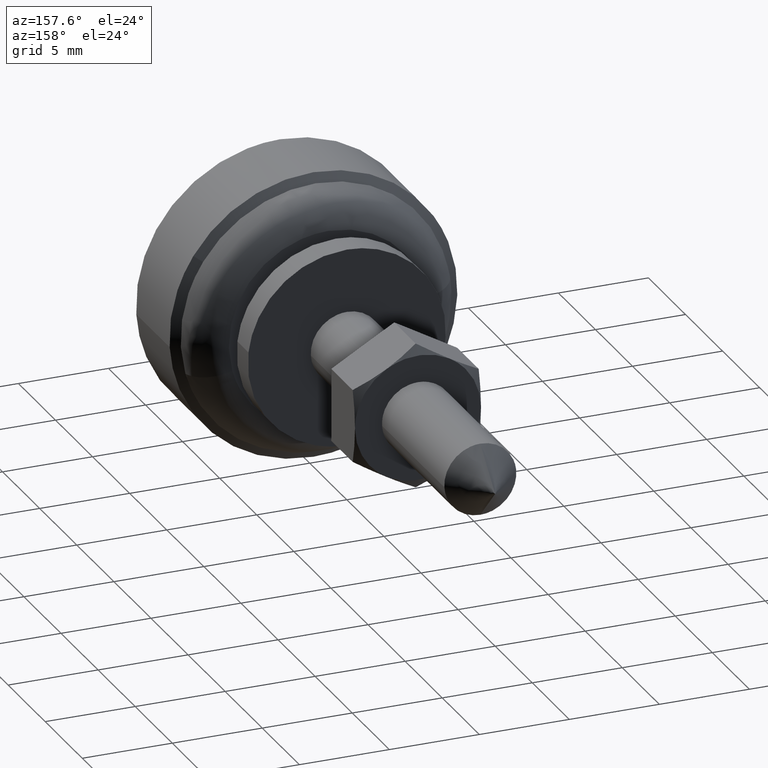
[diagram: clean part render]
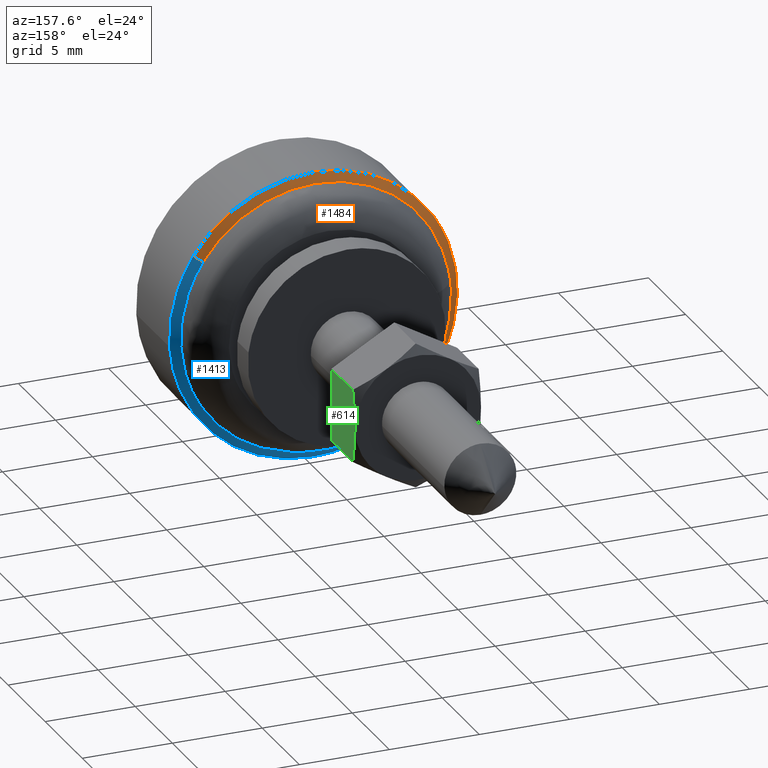
[diagram: same view with three faces highlighted in distinct colors, each labeled with its STEP entity id]
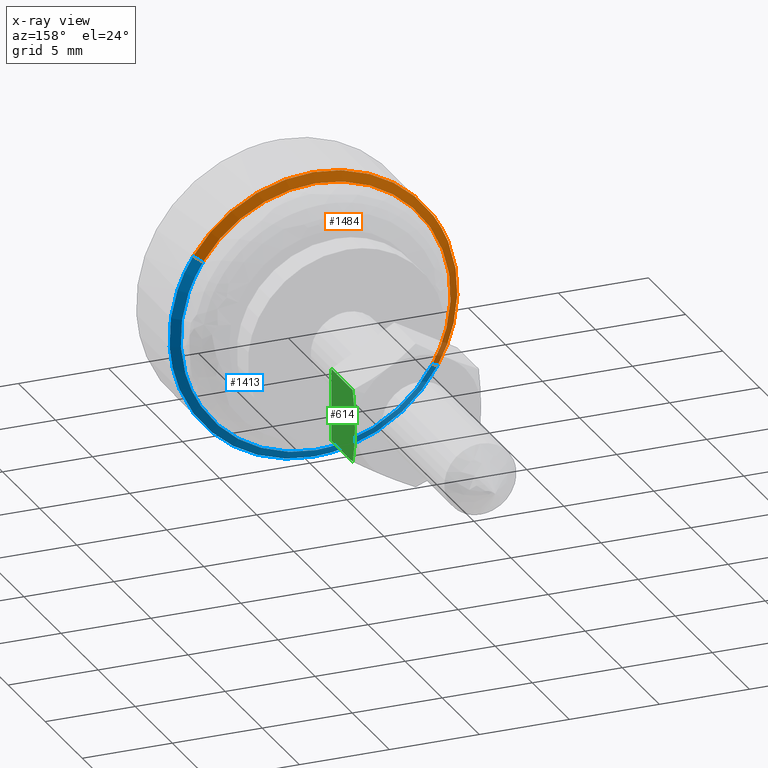
[diagram: x-ray of the same camera — body ghosted, the three highlighted faces saturated]
A machine part, auxiliary view with three faces highlighted in distinct colors.
The next image is the same camera in x-ray (body ghosted, the three faces saturated) — at least one of them is partly hidden behind the body in this view.
Their STEP definitions:

[orange] entity #1484 — the highlighted face is a freeform B-spline surface patch.
#1191=CARTESIAN_POINT('',(-4.500000000000000,7.489148755111877,2.812943462603911));
#1192=VERTEX_POINT('',#1191);
#1193=CARTESIAN_POINT('',(-4.500000000000862,6.912699561845349,-4.026733759225474));
#1194=VERTEX_POINT('',#1193);
#1195=CARTESIAN_POINT('',(-4.500000000000001,7.489148755111877,2.812943462603911));
#1196=CARTESIAN_POINT('',(-4.499999999999999,8.0,1.452858721607607));
#1197=CARTESIAN_POINT('',(-4.500000000000000,8.0,0.0));
#1198=CARTESIAN_POINT('',(-4.499999999999999,8.0,-2.160163553244566));
#1199=CARTESIAN_POINT('',(-4.500000000000862,6.912699561845349,-4.026733759225475));
#1207=(BOUNDED_CURVE()B_SPLINE_CURVE(2,(#1195,#1196,#1197,#1198,#1199),.UNSPECIFIED.,.F.,.U.)B_SPLINE_CURVE_WITH_KNOTS((3,2,3),(0.190284184925302,0.250000000000000,0.335863179245147),.UNSPECIFIED.)CURVE()GEOMETRIC_REPRESENTATION_ITEM()RATIONAL_B_SPLINE_CURVE((0.893499571800742,0.930038570834811,1.0,0.899405028213330,0.867909289176095))REPRESENTATION_ITEM(''));
#1208=EDGE_CURVE('',#1192,#1194,#1207,.T.);
#1275=CARTESIAN_POINT('',(-4.500000000000000,0.0,8.0));
#1276=VERTEX_POINT('',#1275);
#1277=CARTESIAN_POINT('',(-4.500000000000000,0.0,8.0));
#1278=CARTESIAN_POINT('',(-4.500000000000001,5.540877291164208,8.000000000000002));
#1279=CARTESIAN_POINT('',(-4.500000000000000,7.489148755111877,2.812943462603912));
#1287=(BOUNDED_CURVE()B_SPLINE_CURVE(2,(#1277,#1278,#1279),.UNSPECIFIED.,.F.,.U.)B_SPLINE_CURVE_WITH_KNOTS((3,3),(0.0,0.190284184925302),.UNSPECIFIED.)CURVE()GEOMETRIC_REPRESENTATION_ITEM()RATIONAL_B_SPLINE_CURVE((1.0,0.777068210351737,0.893499571800742))REPRESENTATION_ITEM(''));
#1288=EDGE_CURVE('',#1276,#1192,#1287,.T.);
#1294=CARTESIAN_POINT('',(-4.500000000000428,-6.671086576530033,4.415495882508806));
#1295=VERTEX_POINT('',#1294);
#1311=CARTESIAN_POINT('',(-4.500000000000428,-6.671086576530033,4.415495882508806));
#1312=CARTESIAN_POINT('',(-4.500000000000001,-4.298555057096790,8.0));
#1313=CARTESIAN_POINT('',(-4.500000000000000,0.0,8.0));
#1321=(BOUNDED_CURVE()B_SPLINE_CURVE(2,(#1311,#1312,#1313),.UNSPECIFIED.,.F.,.U.)B_SPLINE_CURVE_WITH_KNOTS((3,3),(0.844612684636419,1.0),.UNSPECIFIED.)CURVE()GEOMETRIC_REPRESENTATION_ITEM()RATIONAL_B_SPLINE_CURVE((0.862207930029771,0.817952436161519,1.0))REPRESENTATION_ITEM(''));
#1322=EDGE_CURVE('',#1295,#1276,#1321,.T.);
#1349=CARTESIAN_POINT('',(-4.199981513082358,6.480629215372399,-3.775047390546246));
#1350=VERTEX_POINT('',#1349);
#1381=CARTESIAN_POINT('',(-4.199982109619155,-6.254118205825438,4.139510538468565));
#1382=VERTEX_POINT('',#1381);
#1398=CARTESIAN_POINT('',(-4.199982109619155,-6.254118205825438,4.139510538468565));
#1399=CARTESIAN_POINT('',(-4.500000000000428,-6.671086576530033,4.415495882508806));
#1400=QUASI_UNIFORM_CURVE('',1,(#1398,#1399),.UNSPECIFIED.,.F.,.U.);
#1401=EDGE_CURVE('',#1382,#1295,#1400,.T.);
#1406=CARTESIAN_POINT('',(-4.199981513082358,6.480629215372399,-3.775047390546246));
#1407=CARTESIAN_POINT('',(-4.500000000000862,6.912699561845349,-4.026733759225474));
#1408=QUASI_UNIFORM_CURVE('',1,(#1406,#1407),.UNSPECIFIED.,.F.,.U.);
#1409=EDGE_CURVE('',#1350,#1194,#1408,.T.);
#1414=CARTESIAN_POINT('',(-4.192481050895472,-6.243693757078574,4.132610746337989));
#1415=CARTESIAN_POINT('',(-4.192481050895473,-2.111083010740585,10.376304503416561));
#1416=CARTESIAN_POINT('',(-4.192481050895472,4.132610746337989,6.243693757078574));
#1417=CARTESIAN_POINT('',(-4.192481050895473,10.028864423522142,2.341048583003379));
#1418=CARTESIAN_POINT('',(-4.192481050895473,6.469827456702088,-3.768755231297730));
#1419=CARTESIAN_POINT('',(-4.507687973727614,-6.681771397023817,4.422568010900430));
#1420=CARTESIAN_POINT('',(-4.507687973727614,-2.259203386123387,11.104339407924247));
#1421=CARTESIAN_POINT('',(-4.507687973727614,4.422568010900430,6.681771397023817));
#1422=CARTESIAN_POINT('',(-4.507687973727614,10.732521814310489,2.505304082734861));
#1423=CARTESIAN_POINT('',(-4.507687973727614,6.923771364484513,-4.033183222402581));
#1431=(BOUNDED_SURFACE()B_SPLINE_SURFACE(2,1,((#1414,#1419),(#1415,#1420),(#1416,#1421),(#1417,#1422),(#1418,#1423)),.UNSPECIFIED.,.F.,.F.,.U.)B_SPLINE_SURFACE_WITH_KNOTS((3,2,3),(2,2),(0.0,13.276063749173350,26.021084948379769),(0.0,1.0),.UNSPECIFIED.)GEOMETRIC_REPRESENTATION_ITEM()RATIONAL_B_SPLINE_SURFACE(((1.0,1.0),(0.707106781186548,0.707106781186548),(1.0,1.0),(0.718822509939086,0.718822509939086),(0.977505800795127,0.977505800795127)))REPRESENTATION_ITEM('')SURFACE());
#1432=CARTESIAN_POINT('',(-4.199981513068753,7.414857623658715,1.126687289724964));
#1433=VERTEX_POINT('',#1432);
#1434=CARTESIAN_POINT('',(-4.199981513068753,7.414857623658715,1.126687289724964));
#1435=CARTESIAN_POINT('',(-4.199981513081490,7.499969188469151,0.566558369360793));
#1436=CARTESIAN_POINT('',(-4.199981513081490,7.499969188469150,0.0));
#1437=CARTESIAN_POINT('',(-4.199981513081490,7.499969188469149,-2.025145011425083));
#1438=CARTESIAN_POINT('',(-4.199981513082358,6.480629215372399,-3.775047390546246));
#1446=(BOUNDED_CURVE()B_SPLINE_CURVE(2,(#1434,#1435,#1436,#1437,#1438),.UNSPECIFIED.,.F.,.U.)B_SPLINE_CURVE_WITH_KNOTS((3,2,3),(0.224102415376537,0.250000000000000,0.335863179245206),.UNSPECIFIED.)CURVE()GEOMETRIC_REPRESENTATION_ITEM()RATIONAL_B_SPLINE_CURVE((0.945604234434568,0.969659092320560,1.0,0.899405028213261,0.867909289176052))REPRESENTATION_ITEM(''));
#1447=EDGE_CURVE('',#1433,#1350,#1446,.T.);
#1448=ORIENTED_EDGE('',*,*,#1447,.T.);
#1449=ORIENTED_EDGE('',*,*,#1409,.T.);
#1450=ORIENTED_EDGE('',*,*,#1208,.F.);
#1451=ORIENTED_EDGE('',*,*,#1288,.F.);
#1452=ORIENTED_EDGE('',*,*,#1322,.F.);
#1453=ORIENTED_EDGE('',*,*,#1401,.F.);
#1454=CARTESIAN_POINT('',(-4.199981513081490,0.0,7.499969188469150));
#1455=VERTEX_POINT('',#1454);
#1456=CARTESIAN_POINT('',(-4.199982109619155,-6.254118205825438,4.139510538468565));
#1457=CARTESIAN_POINT('',(-4.199981857847730,-4.029878793828583,7.499969174692290));
#1458=CARTESIAN_POINT('',(-4.199981513081490,0.0,7.499969188469150));
#1466=(BOUNDED_CURVE()B_SPLINE_CURVE(2,(#1456,#1457,#1458),.UNSPECIFIED.,.F.,.U.)B_SPLINE_CURVE_WITH_KNOTS((3,3),(0.844612686750472,1.0),.UNSPECIFIED.)CURVE()GEOMETRIC_REPRESENTATION_ITEM()RATIONAL_B_SPLINE_CURVE((0.862207928825574,0.817952438638286,1.0))REPRESENTATION_ITEM(''));
#1467=EDGE_CURVE('',#1382,#1455,#1466,.T.);
#1468=ORIENTED_EDGE('',*,*,#1467,.T.);
#1469=CARTESIAN_POINT('',(-4.199981513081490,0.0,7.499969188469150));
#1470=CARTESIAN_POINT('',(-4.199981513081490,6.446437719516140,7.499969188469150));
#1471=CARTESIAN_POINT('',(-4.199981513068753,7.414857623658715,1.126687289724965));
#1479=(BOUNDED_CURVE()B_SPLINE_CURVE(2,(#1469,#1470,#1471),.UNSPECIFIED.,.F.,.U.)B_SPLINE_CURVE_WITH_KNOTS((3,3),(0.0,0.224102415376537),.UNSPECIFIED.)CURVE()GEOMETRIC_REPRESENTATION_ITEM()RATIONAL_B_SPLINE_CURVE((1.0,0.737447688865987,0.945604234434569))REPRESENTATION_ITEM(''));
#1480=EDGE_CURVE('',#1455,#1433,#1479,.T.);
#1481=ORIENTED_EDGE('',*,*,#1480,.T.);
#1482=EDGE_LOOP('',(#1448,#1449,#1450,#1451,#1452,#1453,#1468,#1481));
#1483=FACE_OUTER_BOUND('',#1482,.T.);
#1484=ADVANCED_FACE('',(#1483),#1431,.T.);

[blue] entity #1413 — the highlighted face is a freeform B-spline surface patch.
#1193=CARTESIAN_POINT('',(-4.500000000000862,6.912699561845349,-4.026733759225474));
#1194=VERTEX_POINT('',#1193);
#1210=CARTESIAN_POINT('',(-4.500000000000000,0.0,-8.0));
#1211=VERTEX_POINT('',#1210);
#1212=CARTESIAN_POINT('',(-4.500000000000862,6.912699561845349,-4.026733759225474));
#1213=CARTESIAN_POINT('',(-4.500000000000000,4.598222393686203,-8.0));
#1214=CARTESIAN_POINT('',(-4.500000000000000,0.0,-8.0));
#1222=(BOUNDED_CURVE()B_SPLINE_CURVE(2,(#1212,#1213,#1214),.UNSPECIFIED.,.F.,.U.)B_SPLINE_CURVE_WITH_KNOTS((3,3),(0.335863179245147,0.500000000000000),.UNSPECIFIED.)CURVE()GEOMETRIC_REPRESENTATION_ITEM()RATIONAL_B_SPLINE_CURVE((0.867909289176095,0.807701752973217,1.0))REPRESENTATION_ITEM(''));
#1223=EDGE_CURVE('',#1194,#1211,#1222,.T.);
#1225=CARTESIAN_POINT('',(-4.499999999999990,-7.985078535560109,-0.488385893460607));
#1226=VERTEX_POINT('',#1225);
#1227=CARTESIAN_POINT('',(-4.500000000000000,0.0,-8.0));
#1228=CARTESIAN_POINT('',(-4.499999999999999,-7.525650822931699,-8.0));
#1229=CARTESIAN_POINT('',(-4.499999999999990,-7.985078535560109,-0.488385893460607));
#1237=(BOUNDED_CURVE()B_SPLINE_CURVE(2,(#1227,#1228,#1229),.UNSPECIFIED.,.F.,.U.)B_SPLINE_CURVE_WITH_KNOTS((3,3),(0.500000000000000,0.739333014595810),.UNSPECIFIED.)CURVE()GEOMETRIC_REPRESENTATION_ITEM()RATIONAL_B_SPLINE_CURVE((1.0,0.719603931946825,0.976072153877475))REPRESENTATION_ITEM(''));
#1238=EDGE_CURVE('',#1211,#1226,#1237,.T.);
#1294=CARTESIAN_POINT('',(-4.500000000000428,-6.671086576530033,4.415495882508806));
#1295=VERTEX_POINT('',#1294);
#1296=CARTESIAN_POINT('',(-4.499999999999990,-7.985078535560109,-0.488385893460607));
#1297=CARTESIAN_POINT('',(-4.500000000000000,-8.000000000000002,-0.244420891582942));
#1298=CARTESIAN_POINT('',(-4.500000000000000,-8.0,0.0));
#1299=CARTESIAN_POINT('',(-4.500000000000000,-8.0,2.407726713077449));
#1300=CARTESIAN_POINT('',(-4.500000000000428,-6.671086576530033,4.415495882508806));
#1308=(BOUNDED_CURVE()B_SPLINE_CURVE(2,(#1296,#1297,#1298,#1299,#1300),.UNSPECIFIED.,.F.,.U.)B_SPLINE_CURVE_WITH_KNOTS((3,2,3),(0.739333014595810,0.750000000000000,0.844612684636419),.UNSPECIFIED.)CURVE()GEOMETRIC_REPRESENTATION_ITEM()RATIONAL_B_SPLINE_CURVE((0.976072153877475,0.987502849239722,1.0,0.889154345025028,0.862207930029771))REPRESENTATION_ITEM(''));
#1309=EDGE_CURVE('',#1226,#1295,#1308,.T.);
#1327=CARTESIAN_POINT('',(-4.192481050895473,6.469827456702088,-3.768755231297730));
#1328=CARTESIAN_POINT('',(-4.192481050895472,6.361967301149106,-3.953918913482667));
#1329=CARTESIAN_POINT('',(-4.192481050895472,6.243693757078574,-4.132610746337989));
#1330=CARTESIAN_POINT('',(-4.192481050895473,2.111083010740585,-10.376304503416561));
#1331=CARTESIAN_POINT('',(-4.192481050895472,-4.132610746337989,-6.243693757078574));
#1332=CARTESIAN_POINT('',(-4.192481050895473,-10.376304503416561,-2.111083010740585));
#1333=CARTESIAN_POINT('',(-4.192481050895472,-6.243693757078574,4.132610746337989));
#1334=CARTESIAN_POINT('',(-4.507687973727614,6.923771364484513,-4.033183222402581));
#1335=CARTESIAN_POINT('',(-4.507687973727614,6.808343393432059,-4.231338584200759));
#1336=CARTESIAN_POINT('',(-4.507687973727614,6.681771397023817,-4.422568010900430));
#1337=CARTESIAN_POINT('',(-4.507687973727614,2.259203386123387,-11.104339407924247));
#1338=CARTESIAN_POINT('',(-4.507687973727614,-4.422568010900430,-6.681771397023817));
#1339=CARTESIAN_POINT('',(-4.507687973727614,-11.104339407924247,-2.259203386123387));
#1340=CARTESIAN_POINT('',(-4.507687973727614,-6.681771397023817,4.422568010900430));
#1348=(BOUNDED_SURFACE()B_SPLINE_SURFACE(2,1,((#1327,#1334),(#1328,#1335),(#1329,#1336),(#1330,#1337),(#1331,#1338),(#1332,#1339),(#1333,#1340)),.UNSPECIFIED.,.F.,.F.,.U.)B_SPLINE_SURFACE_WITH_KNOTS((3,2,2,3),(2,2),(0.0,0.531042549966935,13.807106299140290,27.083170048313640),(0.0,1.0),.UNSPECIFIED.)GEOMETRIC_REPRESENTATION_ITEM()RATIONAL_B_SPLINE_SURFACE(((0.977505800795127,0.977505800795127),(0.988284271247462,0.988284271247462),(1.0,1.0),(0.707106781186548,0.707106781186548),(1.0,1.0),(0.707106781186548,0.707106781186548),(1.0,1.0)))REPRESENTATION_ITEM('')SURFACE());
#1349=CARTESIAN_POINT('',(-4.199981513082358,6.480629215372399,-3.775047390546246));
#1350=VERTEX_POINT('',#1349);
#1351=CARTESIAN_POINT('',(-4.199981513081490,0.0,-7.499969188469150));
#1352=VERTEX_POINT('',#1351);
#1353=CARTESIAN_POINT('',(-4.199981513082358,6.480629215372399,-3.775047390546246));
#1354=CARTESIAN_POINT('',(-4.199981513081491,4.310815784295002,-7.499969188469150));
#1355=CARTESIAN_POINT('',(-4.199981513081490,0.0,-7.499969188469150));
#1363=(BOUNDED_CURVE()B_SPLINE_CURVE(2,(#1353,#1354,#1355),.UNSPECIFIED.,.F.,.U.)B_SPLINE_CURVE_WITH_KNOTS((3,3),(0.335863179245205,0.500000000000000),.UNSPECIFIED.)CURVE()GEOMETRIC_REPRESENTATION_ITEM()RATIONAL_B_SPLINE_CURVE((0.867909289176052,0.807701752973286,1.0))REPRESENTATION_ITEM(''));
#1364=EDGE_CURVE('',#1350,#1352,#1363,.T.);
#1365=ORIENTED_EDGE('',*,*,#1364,.T.);
#1366=CARTESIAN_POINT('',(-4.199983193682517,-7.235174283618619,-1.975296114114128));
#1367=VERTEX_POINT('',#1366);
#1368=CARTESIAN_POINT('',(-4.199981513081490,0.0,-7.499969188469150));
#1369=CARTESIAN_POINT('',(-4.199982353382003,-5.726866971277036,-7.499969222047564));
#1370=CARTESIAN_POINT('',(-4.199983193682517,-7.235174283618620,-1.975296114114129));
#1378=(BOUNDED_CURVE()B_SPLINE_CURVE(2,(#1368,#1369,#1370),.UNSPECIFIED.,.F.,.U.)B_SPLINE_CURVE_WITH_KNOTS((3,3),(0.500000000000000,0.705098215504528),.UNSPECIFIED.)CURVE()GEOMETRIC_REPRESENTATION_ITEM()RATIONAL_B_SPLINE_CURVE((1.0,0.759712493951935,0.913685297491802))REPRESENTATION_ITEM(''));
#1379=EDGE_CURVE('',#1352,#1367,#1378,.T.);
#1380=ORIENTED_EDGE('',*,*,#1379,.T.);
#1381=CARTESIAN_POINT('',(-4.199982109619155,-6.254118205825438,4.139510538468565));
#1382=VERTEX_POINT('',#1381);
#1383=CARTESIAN_POINT('',(-4.199983193682517,-7.235174283618620,-1.975296114114129));
#1384=CARTESIAN_POINT('',(-4.199983107668333,-7.499969421863575,-1.005396432316922));
#1385=CARTESIAN_POINT('',(-4.199982995023192,-7.499969405376078,-0.000000059218398));
#1386=CARTESIAN_POINT('',(-4.199982742121437,-7.499969368359681,2.257234527903331));
#1387=CARTESIAN_POINT('',(-4.199982109619155,-6.254118205825438,4.139510538468565));
#1395=(BOUNDED_CURVE()B_SPLINE_CURVE(2,(#1383,#1384,#1385,#1386,#1387),.UNSPECIFIED.,.F.,.U.)B_SPLINE_CURVE_WITH_KNOTS((3,2,3),(0.705098215504528,0.750000000000000,0.844612686750473),.UNSPECIFIED.)CURVE()GEOMETRIC_REPRESENTATION_ITEM()RATIONAL_B_SPLINE_CURVE((0.913685297491802,0.947394287234612,1.0,0.889154342548261,0.862207928825574))REPRESENTATION_ITEM(''));
#1396=EDGE_CURVE('',#1367,#1382,#1395,.T.);
#1397=ORIENTED_EDGE('',*,*,#1396,.T.);
#1398=CARTESIAN_POINT('',(-4.199982109619155,-6.254118205825438,4.139510538468565));
#1399=CARTESIAN_POINT('',(-4.500000000000428,-6.671086576530033,4.415495882508806));
#1400=QUASI_UNIFORM_CURVE('',1,(#1398,#1399),.UNSPECIFIED.,.F.,.U.);
#1401=EDGE_CURVE('',#1382,#1295,#1400,.T.);
#1402=ORIENTED_EDGE('',*,*,#1401,.T.);
#1403=ORIENTED_EDGE('',*,*,#1309,.F.);
#1404=ORIENTED_EDGE('',*,*,#1238,.F.);
#1405=ORIENTED_EDGE('',*,*,#1223,.F.);
#1406=CARTESIAN_POINT('',(-4.199981513082358,6.480629215372399,-3.775047390546246));
#1407=CARTESIAN_POINT('',(-4.500000000000862,6.912699561845349,-4.026733759225474));
#1408=QUASI_UNIFORM_CURVE('',1,(#1406,#1407),.UNSPECIFIED.,.F.,.U.);
#1409=EDGE_CURVE('',#1350,#1194,#1408,.T.);
#1410=ORIENTED_EDGE('',*,*,#1409,.F.);
#1411=EDGE_LOOP('',(#1365,#1380,#1397,#1402,#1403,#1404,#1405,#1410));
#1412=FACE_OUTER_BOUND('',#1411,.T.);
#1413=ADVANCED_FACE('',(#1412),#1348,.T.);

[green] entity #614 — the highlighted face is a freeform B-spline surface patch.
#240=CARTESIAN_POINT('',(9.287777574894530,-3.500000000000000,2.020700000000000));
#241=VERTEX_POINT('',#240);
#242=CARTESIAN_POINT('',(9.599800000000000,-3.500000000000000,0.0));
#243=VERTEX_POINT('',#242);
#244=CARTESIAN_POINT('',(9.287777574894530,-3.500000000000000,2.020700000000000));
#245=CARTESIAN_POINT('',(9.381908548568656,-3.500000000000000,1.694014103536178));
#246=CARTESIAN_POINT('',(9.460281322346296,-3.500000000000000,1.363107260483027));
#247=CARTESIAN_POINT('',(9.542280209610588,-3.500000000000001,0.857221922245237));
#248=CARTESIAN_POINT('',(9.563661786834372,-3.500000000000001,0.686915482489827));
#249=CARTESIAN_POINT('',(9.592516157545466,-3.500000000000001,0.342917021608180));
#250=CARTESIAN_POINT('',(9.599782061734635,-3.500000000000000,0.171488128806604));
#251=CARTESIAN_POINT('',(9.599799988883113,-3.500000000000000,0.000424319223203));
#252=CARTESIAN_POINT('',(9.599799999808090,-3.500000000000000,0.000212159312726));
#253=CARTESIAN_POINT('',(9.599800000000000,-3.500000000000000,0.0));
#254=B_SPLINE_CURVE_WITH_KNOTS('',3,(#244,#245,#246,#247,#248,#249,#250,#251,#252,#253),.UNSPECIFIED.,.F.,.U.,(4,2,2,2,4),(0.499844777023901,0.749844777023901,0.874844777023901,0.999844777023901,1.0),.UNSPECIFIED.);
#255=EDGE_CURVE('',#241,#243,#254,.T.);
#355=CARTESIAN_POINT('',(9.287748760452329,-3.500000000000000,-2.020800000000785));
#356=VERTEX_POINT('',#355);
#357=CARTESIAN_POINT('',(9.599800000000000,-3.500000000000000,0.0));
#358=CARTESIAN_POINT('',(9.599799382868385,-3.500000000000000,-0.341488237334201));
#359=CARTESIAN_POINT('',(9.570502315264291,-3.500000000000000,-0.680643251283802));
#360=CARTESIAN_POINT('',(9.489100585984499,-3.500000000000000,-1.186498776675628));
#361=CARTESIAN_POINT('',(9.455803327235719,-3.500000000000000,-1.354697144372411));
#362=CARTESIAN_POINT('',(9.378667814264979,-3.500000000000000,-1.690254375446317));
#363=CARTESIAN_POINT('',(9.335138489659217,-3.500000000000000,-1.856337857708191));
#364=CARTESIAN_POINT('',(9.287748760452329,-3.500000000000000,-2.020800000000785));
#365=B_SPLINE_CURVE_WITH_KNOTS('',3,(#357,#358,#359,#360,#361,#362,#363,#364),.UNSPECIFIED.,.F.,.U.,(4,2,2,4),(0.0,0.249844776951667,0.374844776951667,0.499844776951667),.UNSPECIFIED.);
#366=EDGE_CURVE('',#243,#356,#365,.T.);
#515=CARTESIAN_POINT('',(6.400000000000000,-3.500000000000000,2.020700000000000));
#516=VERTEX_POINT('',#515);
#545=CARTESIAN_POINT('',(6.400000000000000,-3.500000000000000,-2.020800000000000));
#546=VERTEX_POINT('',#545);
#552=CARTESIAN_POINT('',(6.400000000000000,-3.500000000000000,-2.020800000000000));
#553=CARTESIAN_POINT('',(6.400000000000000,-3.500000000000000,2.020700000000000));
#554=QUASI_UNIFORM_CURVE('',1,(#552,#553),.UNSPECIFIED.,.F.,.U.);
#555=EDGE_CURVE('',#546,#516,#554,.T.);
#594=CARTESIAN_POINT('',(6.240170086314131,-3.500000000000000,2.222572917166828));
#595=CARTESIAN_POINT('',(6.240170086314131,-3.500000000000000,-2.222673025569090));
#596=CARTESIAN_POINT('',(9.759630085336514,-3.500000000000000,2.222572917166828));
#597=CARTESIAN_POINT('',(9.759630085336514,-3.500000000000000,-2.222673025569090));
#598=B_SPLINE_SURFACE_WITH_KNOTS('',1,1,((#594,#596),(#595,#597)),.UNSPECIFIED.,.F.,.F.,.U.,(2,2),(2,2),(0.0,4.445245942735918),(0.0,3.519459999022383),.UNSPECIFIED.);
#599=ORIENTED_EDGE('',*,*,#255,.F.);
#600=CARTESIAN_POINT('',(9.287777574894530,-3.500000000000000,2.020700000000000));
#601=CARTESIAN_POINT('',(6.400000000000000,-3.500000000000000,2.020700000000000));
#602=QUASI_UNIFORM_CURVE('',1,(#600,#601),.UNSPECIFIED.,.F.,.U.);
#603=EDGE_CURVE('',#241,#516,#602,.T.);
#604=ORIENTED_EDGE('',*,*,#603,.T.);
#605=ORIENTED_EDGE('',*,*,#555,.F.);
#606=CARTESIAN_POINT('',(9.287748760452329,-3.500000000000000,-2.020800000000785));
#607=CARTESIAN_POINT('',(6.400000000000000,-3.500000000000000,-2.020800000000000));
#608=QUASI_UNIFORM_CURVE('',1,(#606,#607),.UNSPECIFIED.,.F.,.U.);
#609=EDGE_CURVE('',#356,#546,#608,.T.);
#610=ORIENTED_EDGE('',*,*,#609,.F.);
#611=ORIENTED_EDGE('',*,*,#366,.F.);
#612=EDGE_LOOP('',(#599,#604,#605,#610,#611));
#613=FACE_OUTER_BOUND('',#612,.T.);
#614=ADVANCED_FACE('',(#613),#598,.T.);